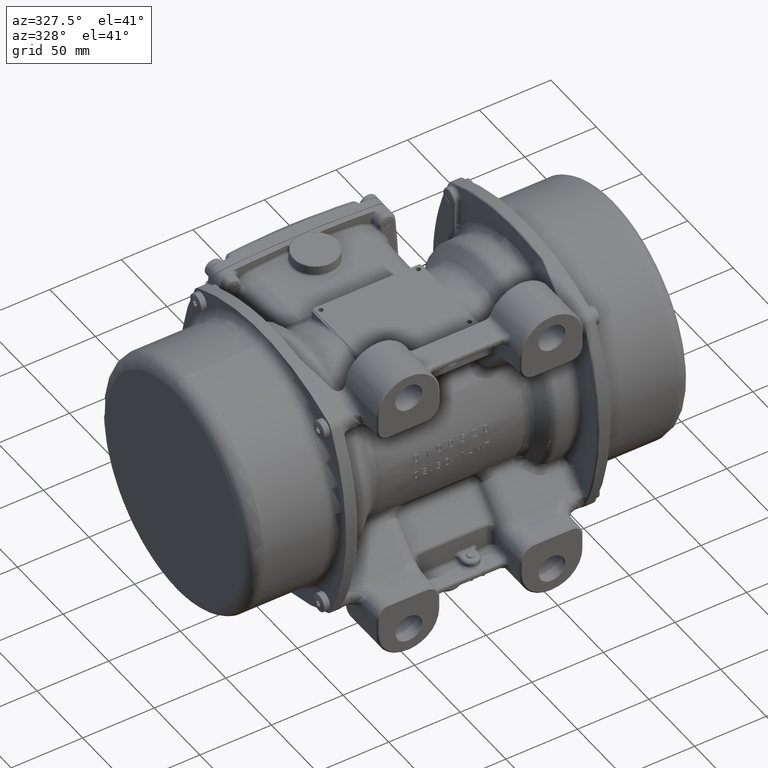
[diagram: clean part render]
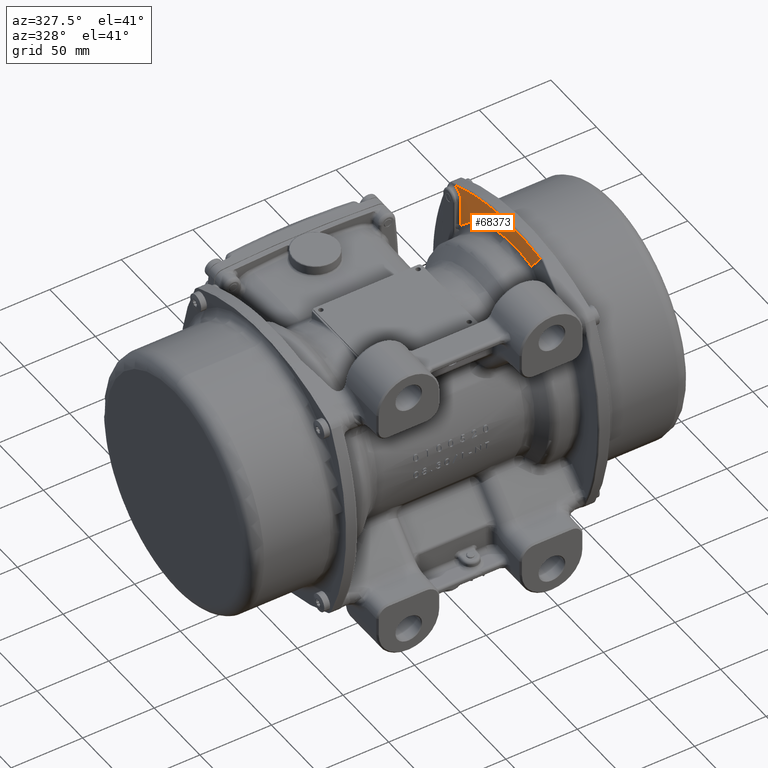
[diagram: same view with one face highlighted and labeled with its STEP entity id]
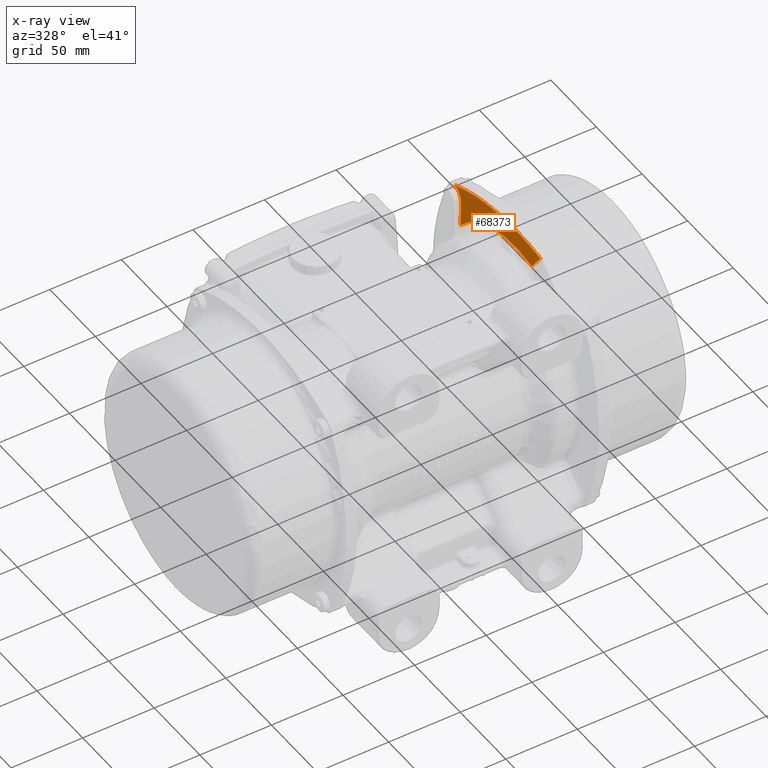
[diagram: x-ray of the same camera — body ghosted, the highlighted face saturated]
A machine part, auxiliary view. The second image highlights one B-rep face of the part: STEP entity #68373.
The next image is the same camera in x-ray: the body ghosted, the highlighted face saturated — about 0% of this face is hidden behind the body in this view.
In plain terms, the highlighted conical surface has half-angle 87.5 deg.
Its self-contained STEP definition (entity closure, byte-faithful):
#149 = B_SPLINE_CURVE_WITH_KNOTS ( 'NONE', 3,
 ( #115388, #28223, #49141, #91525 ),
 .UNSPECIFIED., .F., .F.,
 ( 4, 4 ),
 ( 0.005709306508246214100, 0.02080201575975559500 ),
 .UNSPECIFIED. ) ;
#376 = CARTESIAN_POINT ( 'NONE',  ( 84.05240156991870000, 59.89955937545789800, 70.09238292025528900 ) ) ;
#1927 = DIRECTION ( 'NONE',  ( -2.681698127113904800E-016, 1.000000000000000000, 0.0000000000000000000 ) ) ;
#3358 = DIRECTION ( 'NONE',  ( -3.569385582363369200E-016, 1.000000000000000000, 0.0000000000000000000 ) ) ;
#9477 = CARTESIAN_POINT ( 'NONE',  ( 84.03215234716761000, 59.74920532828613100, 69.61077923668516100 ) ) ;
#11050 = CONICAL_SURFACE ( 'NONE', #88005, 103.5000000000000000, 1.527163095495039500 ) ;
#13381 = DIRECTION ( 'NONE',  ( 1.000000000000000000, 3.061616997868385100E-016, 0.0000000000000000000 ) ) ;
#14295 = CARTESIAN_POINT ( 'NONE',  ( 83.42193319249149400, 2.886043777845249800E-014, 0.0000000000000000000 ) ) ;
#16000 = CARTESIAN_POINT ( 'NONE',  ( 83.95805953879271000, 59.47229360447559500, 67.60281678990629900 ) ) ;
#20424 = CARTESIAN_POINT ( 'NONE',  ( 84.16028633566857300, 61.09532454578369700, 72.31869236555664300 ) ) ;
#24798 = CARTESIAN_POINT ( 'NONE',  ( 83.95705347173863200, 0.5671404307632823500, 90.10504376114188600 ) ) ;
#28223 = CARTESIAN_POINT ( 'NONE',  ( 83.62558251490851500, -21.76559979162412300, 79.52080078379914600 ) ) ;
#30228 = VERTEX_POINT ( 'NONE', #130681 ) ;
#34385 = CARTESIAN_POINT ( 'NONE',  ( 83.97059631572793100, 10.67473187426125100, 89.71638089253164600 ) ) ;
#37022 = ORIENTED_EDGE ( 'NONE', *, *, #115480, .T. ) ;
#39459 = AXIS2_PLACEMENT_3D ( 'NONE', #14295, #13381, #3358 ) ;
#41872 = CARTESIAN_POINT ( 'NONE',  ( 84.43875948961239400, 67.20755490938600500, 75.45922325025348700 ) ) ;
#43276 = CARTESIAN_POINT ( 'NONE',  ( 84.40663194365681900, 66.19126083580516700, 75.37628480314073400 ) ) ;
#43751 = CARTESIAN_POINT ( 'NONE',  ( 84.24858632494299100, 62.51833704609637000, 73.76394658002963900 ) ) ;
#45048 = FACE_OUTER_BOUND ( 'NONE', #93325, .T. ) ;
#48229 = VERTEX_POINT ( 'NONE', #124962 ) ;
#49141 = CARTESIAN_POINT ( 'NONE',  ( 83.83228654259095000, -24.70400249641024700, 83.59918107555574800 ) ) ;
#51226 = ORIENTED_EDGE ( 'NONE', *, *, #136355, .T. ) ;
#52739 = CARTESIAN_POINT ( 'NONE',  ( 84.28047898449933900, 63.14117035943683500, 74.19324448689312100 ) ) ;
#53682 = CARTESIAN_POINT ( 'NONE',  ( 84.31180180979139000, 63.79980814036917300, 74.57434994789277000 ) ) ;
#55708 = VERTEX_POINT ( 'NONE', #16000 ) ;
#55718 = CARTESIAN_POINT ( 'NONE',  ( 84.04128847767654500, 28.87048060208044500, 87.67051112393582500 ) ) ;
#57161 = EDGE_CURVE ( 'NONE', #30228, #55708, #128679, .T. ) ;
#60883 = VERTEX_POINT ( 'NONE', #122001 ) ;
#63784 = CARTESIAN_POINT ( 'NONE',  ( 84.32211042807209400, 64.02959568129979600, 74.68844387023475000 ) ) ;
#65166 = CARTESIAN_POINT ( 'NONE',  ( 83.97508576097641300, 59.48146315017466900, 68.11413937345552900 ) ) ;
#65636 = CARTESIAN_POINT ( 'NONE',  ( 84.22686974891553300, 62.13129223568491000, 73.43982193983866600 ) ) ;
#67648 = CARTESIAN_POINT ( 'NONE',  ( 83.98529303131738300, 15.73483763687976900, 89.29305868996684100 ) ) ;
#67714 = CARTESIAN_POINT ( 'NONE',  ( 83.58726179120661500, 59.26708919563645100, 56.17483156159548200 ) ) ;
#68373 = ADVANCED_FACE ( 'NONE', ( #45048 ), #11050, .T. ) ;
#68465 = ORIENTED_EDGE ( 'NONE', *, *, #115506, .T. ) ;
#75157 = CARTESIAN_POINT ( 'NONE',  ( 84.42354193713505600, 66.70242072191949500, 75.44238243729709800 ) ) ;
#77621 = CARTESIAN_POINT ( 'NONE',  ( 84.09737747451355000, 36.77254620066883500, 86.03243433284379200 ) ) ;
#78556 = CARTESIAN_POINT ( 'NONE',  ( 84.24370564350994100, 52.24296488271600200, 81.61262956499911100 ) ) ;
#79842 = B_SPLINE_CURVE_WITH_KNOTS ( 'NONE', 3,
 ( #133403, #132942, #67714, #101453 ),
 .UNSPECIFIED., .F., .F.,
 ( 4, 4 ),
 ( 0.0000000000000000000, 0.01715376441343152000 ),
 .UNSPECIFIED. ) ;
#81945 = EDGE_CURVE ( 'NONE', #124351, #48229, #149, .T. ) ;
#82123 = ORIENTED_EDGE ( 'NONE', *, *, #81945, .T. ) ;
#87481 = CARTESIAN_POINT ( 'NONE',  ( 83.99354844162202500, 59.54007804143541400, 68.62337029936745100 ) ) ;
#88005 = AXIS2_PLACEMENT_3D ( 'NONE', #131945, #109590, #1927 ) ;
#89520 = CARTESIAN_POINT ( 'NONE',  ( 84.33391114741610300, 59.81130873885312100, 78.83086883931443400 ) ) ;
#90000 = CARTESIAN_POINT ( 'NONE',  ( 83.99655332856406200, 18.77286807467671200, 88.96768287786858300 ) ) ;
#91525 = CARTESIAN_POINT ( 'NONE',  ( 84.04076479263321200, -27.63733406112315200, 87.68110937139000800 ) ) ;
#93325 = EDGE_LOOP ( 'NONE', ( #122909, #51226, #68465, #82123, #37022 ) ) ;
#96581 = CARTESIAN_POINT ( 'NONE',  ( 84.12749493701927900, 60.67595987479659000, 71.68972420338791100 ) ) ;
#97971 = CARTESIAN_POINT ( 'NONE',  ( 84.35205412984200300, 64.72637889787287700, 74.99396261912856700 ) ) ;
#99532 = CARTESIAN_POINT ( 'NONE',  ( 84.04076479263321200, -27.63733406112315200, 87.68110937139000800 ) ) ;
#99980 = CARTESIAN_POINT ( 'NONE',  ( 84.00074775741724400, 19.78597807894905000, 88.84625861212902000 ) ) ;
#101453 = CARTESIAN_POINT ( 'NONE',  ( 83.42193319249149400, 59.16415977247540100, 50.46022512087019900 ) ) ;
#108041 = CARTESIAN_POINT ( 'NONE',  ( 84.37093482361562700, 65.20521531633234200, 75.15173661193841800 ) ) ;
#108982 = CARTESIAN_POINT ( 'NONE',  ( 84.29099561015729600, 63.35587407334808300, 74.32679730818226500 ) ) ;
#109590 = DIRECTION ( 'NONE',  ( 1.000000000000000000, 3.061616997868385100E-016, 0.0000000000000000000 ) ) ;
#110568 = CARTESIAN_POINT ( 'NONE',  ( 84.43875948961239400, 67.20755490938600500, 75.45922325025348700 ) ) ;
#111495 = CARTESIAN_POINT ( 'NONE',  ( 83.99320068448308500, -19.59817873379858400, 89.07284066022326400 ) ) ;
#112814 = CARTESIAN_POINT ( 'NONE',  ( 83.42193319249139400, -18.81835425792489900, 75.44866906616130100 ) ) ;
#115388 = CARTESIAN_POINT ( 'NONE',  ( 83.42193319249139400, -18.81835425792489900, 75.44866906616130100 ) ) ;
#115480 = EDGE_CURVE ( 'NONE', #48229, #30228, #135209, .T. ) ;
#115506 = EDGE_CURVE ( 'NONE', #60883, #124351, #117679, .T. ) ;
#117679 = CIRCLE ( 'NONE', #39459, 77.76009336949059000 ) ;
#119513 = CARTESIAN_POINT ( 'NONE',  ( 84.09498810443066900, 60.30603898026957700, 71.02727742873155100 ) ) ;
#122001 = CARTESIAN_POINT ( 'NONE',  ( 83.42193319249149400, 59.16415977247540100, 50.46022512087019900 ) ) ;
#122909 = ORIENTED_EDGE ( 'NONE', *, *, #57161, .T. ) ;
#122939 = CARTESIAN_POINT ( 'NONE',  ( 83.95929934752285800, 4.607661865201619000, 90.04085248434849100 ) ) ;
#124351 = VERTEX_POINT ( 'NONE', #112814 ) ;
#124962 = CARTESIAN_POINT ( 'NONE',  ( 84.04076479263321200, -27.63733406112315200, 87.68110937139000800 ) ) ;
#128679 = B_SPLINE_CURVE_WITH_KNOTS ( 'NONE', 3,
 ( #41872, #75157, #43276, #108041, #97971, #63784, #53682, #108982, #52739, #43751, #65636, #129022, #20424, #96581, #139936, #119513, #129946, #376, #9477, #87481, #65166, #141319 ),
 .UNSPECIFIED., .F., .F.,
 ( 4, 2, 2, 2, 2, 2, 2, 2, 2, 2, 4 ),
 ( 0.01262492604869351300, 0.01413822160950952400, 0.01565151717032553500, 0.01640816495073355000, 0.01716481273114156500, 0.01867810829195759600, 0.02019140385277362600, 0.02094805163318166200, 0.02170469941358970200, 0.02321799497440573500, 0.02473129053522177600 ),
 .UNSPECIFIED. ) ;
#129022 = CARTESIAN_POINT ( 'NONE',  ( 84.18246305808936800, 61.41548445883533000, 72.71312917659187700 ) ) ;
#129946 = CARTESIAN_POINT ( 'NONE',  ( 84.08417404598897300, 60.19553753409861200, 70.79617415293685700 ) ) ;
#130681 = CARTESIAN_POINT ( 'NONE',  ( 84.43875948961239400, 67.20755490938600500, 75.45922325025348700 ) ) ;
#131945 = CARTESIAN_POINT ( 'NONE',  ( 84.54576178635639400, 2.920451105101914400E-014, 0.0000000000000000000 ) ) ;
#132876 = CARTESIAN_POINT ( 'NONE',  ( 83.96609866021900400, -11.54197055979847500, 89.84569295418927500 ) ) ;
#132942 = CARTESIAN_POINT ( 'NONE',  ( 83.76779792927575800, 59.36982739063066800, 61.88897982251517500 ) ) ;
#133343 = CARTESIAN_POINT ( 'NONE',  ( 83.98882655007142300, 16.74733628803735600, 89.19106567971223900 ) ) ;
#133403 = CARTESIAN_POINT ( 'NONE',  ( 83.95805953879271000, 59.47229360447559500, 67.60281678990629900 ) ) ;
#133799 = CARTESIAN_POINT ( 'NONE',  ( 83.97568272453779100, 12.69813761124282600, 89.57015325338495900 ) ) ;
#135209 = B_SPLINE_CURVE_WITH_KNOTS ( 'NONE', 3,
 ( #99532, #111495, #132876, #24798, #122939, #34385, #133799, #67648, #133343, #90000, #99980, #55718, #77621, #78556, #89520, #110568 ),
 .UNSPECIFIED., .F., .F.,
 ( 4, 2, 2, 2, 2, 2, 2, 4 ),
 ( 4.071175363695536500E-015, 0.02422333142649750800, 0.03633499713974423100, 0.04239082999636758400, 0.04541874642467926700, 0.04844666285299095000, 0.07266999427948442300, 0.09689332570597790400 ),
 .UNSPECIFIED. ) ;
#136355 = EDGE_CURVE ( 'NONE', #55708, #60883, #79842, .T. ) ;
#139936 = CARTESIAN_POINT ( 'NONE',  ( 84.11662021529767200, 60.54599887994466900, 71.47341412939839200 ) ) ;
#141319 = CARTESIAN_POINT ( 'NONE',  ( 83.95805953879271000, 59.47229360447559500, 67.60281678990629900 ) ) ;